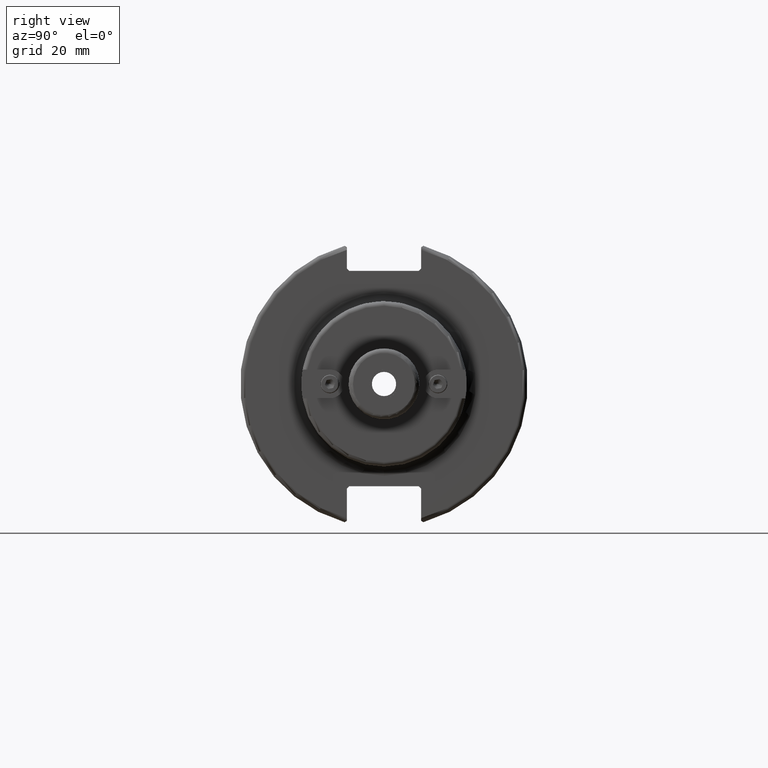
[diagram: clean part render]
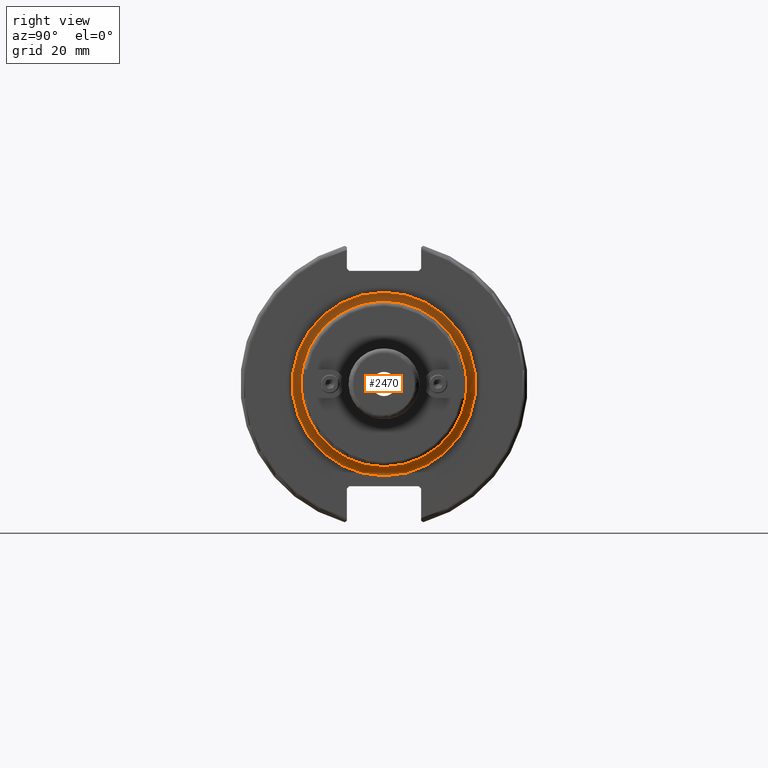
[diagram: same view with one face highlighted and labeled with its STEP entity id]
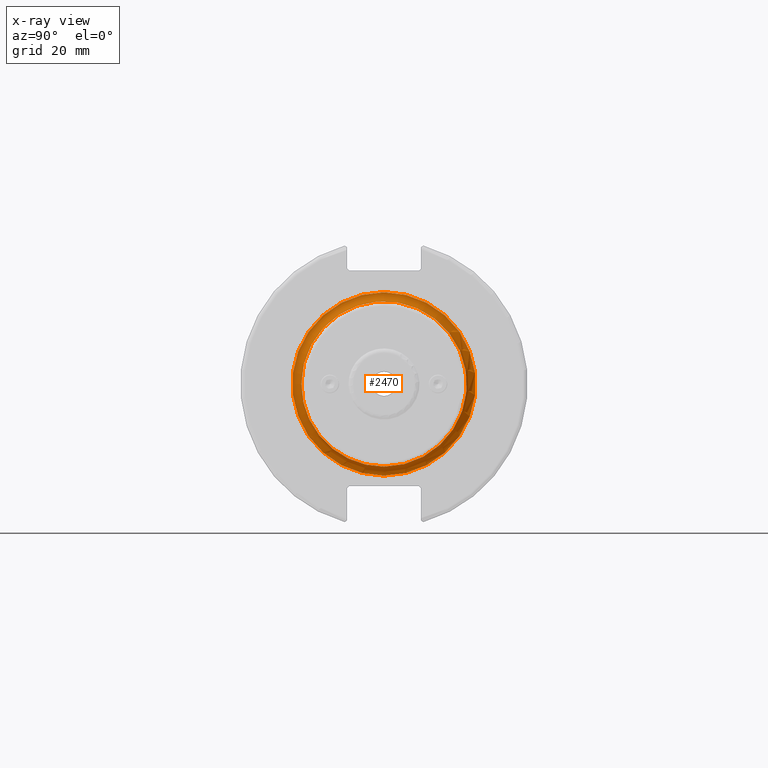
[diagram: x-ray of the same camera — body ghosted, the highlighted face saturated]
A machine part, right view. The second image highlights one B-rep face of the part: STEP entity #2470.
The next image is the same camera in x-ray: the body ghosted, the highlighted face saturated — about 0% of this face is hidden behind the body in this view.
In plain terms, the highlighted toroidal blend (fillet) surface has major radius 20.265 mm and minor (blend) radius 2 mm.
Its self-contained STEP definition (entity closure, byte-faithful):
#97=TOROIDAL_SURFACE('',#2748,20.265,2.);
#199=CIRCLE('',#2711,18.265);
#200=CIRCLE('',#2712,18.265);
#221=CIRCLE('',#2749,2.);
#222=CIRCLE('',#2750,20.265);
#342=FACE_OUTER_BOUND('',#495,.T.);
#495=EDGE_LOOP('',(#1744,#1745,#1746,#1747,#1748));
#1027=VERTEX_POINT('',#3834);
#1028=VERTEX_POINT('',#3836);
#1056=VERTEX_POINT('',#4008);
#1278=EDGE_CURVE('',#1028,#1027,#199,.T.);
#1279=EDGE_CURVE('',#1027,#1028,#200,.T.);
#1320=EDGE_CURVE('',#1028,#1056,#221,.T.);
#1321=EDGE_CURVE('',#1056,#1056,#222,.T.);
#1744=ORIENTED_EDGE('',*,*,#1279,.T.);
#1745=ORIENTED_EDGE('',*,*,#1320,.T.);
#1746=ORIENTED_EDGE('',*,*,#1321,.T.);
#1747=ORIENTED_EDGE('',*,*,#1320,.F.);
#1748=ORIENTED_EDGE('',*,*,#1278,.T.);
#2470=ADVANCED_FACE('',(#342),#97,.F.);
#2711=AXIS2_PLACEMENT_3D('',#3837,#3040,#3041);
#2712=AXIS2_PLACEMENT_3D('',#3838,#3042,#3043);
#2748=AXIS2_PLACEMENT_3D('',#4007,#3128,#3129);
#2749=AXIS2_PLACEMENT_3D('',#4009,#3130,#3131);
#2750=AXIS2_PLACEMENT_3D('',#4010,#3132,#3133);
#3040=DIRECTION('center_axis',(-1.,0.,0.));
#3041=DIRECTION('ref_axis',(0.,-1.,-1.22464679914735E-16));
#3042=DIRECTION('center_axis',(-1.,0.,0.));
#3043=DIRECTION('ref_axis',(0.,-1.,-1.22464679914735E-16));
#3128=DIRECTION('center_axis',(-1.,0.,0.));
#3129=DIRECTION('ref_axis',(0.,0.,1.));
#3130=DIRECTION('center_axis',(0.,-1.,1.22464679914735E-16));
#3131=DIRECTION('ref_axis',(0.,-1.22464679914735E-16,-1.));
#3132=DIRECTION('center_axis',(1.,0.,0.));
#3133=DIRECTION('ref_axis',(0.,-1.,-1.22464679914735E-16));
#3834=CARTESIAN_POINT('',(21.05,-18.265,-2.23681737864264E-15));
#3836=CARTESIAN_POINT('',(21.05,-2.23681737864264E-15,-18.265));
#3837=CARTESIAN_POINT('Origin',(21.05,0.,0.));
#3838=CARTESIAN_POINT('Origin',(21.05,0.,0.));
#4007=CARTESIAN_POINT('Origin',(21.05,0.,0.));
#4008=CARTESIAN_POINT('',(19.05,-2.48174673847211E-15,-20.265));
#4009=CARTESIAN_POINT('Origin',(21.05,-2.48174673847211E-15,-20.265));
#4010=CARTESIAN_POINT('Origin',(19.05,0.,0.));